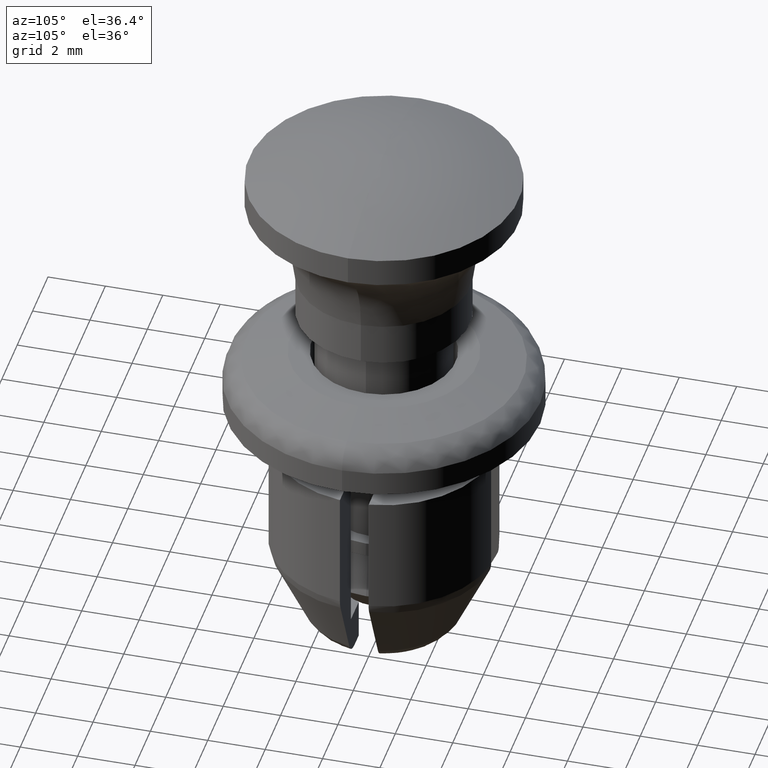
[diagram: clean part render]
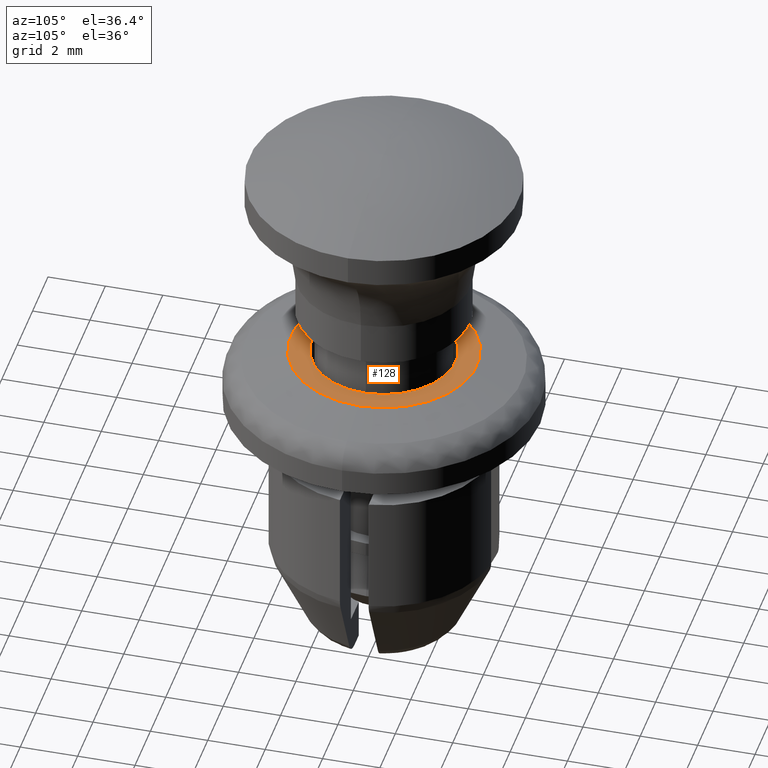
[diagram: same view with one face highlighted and labeled with its STEP entity id]
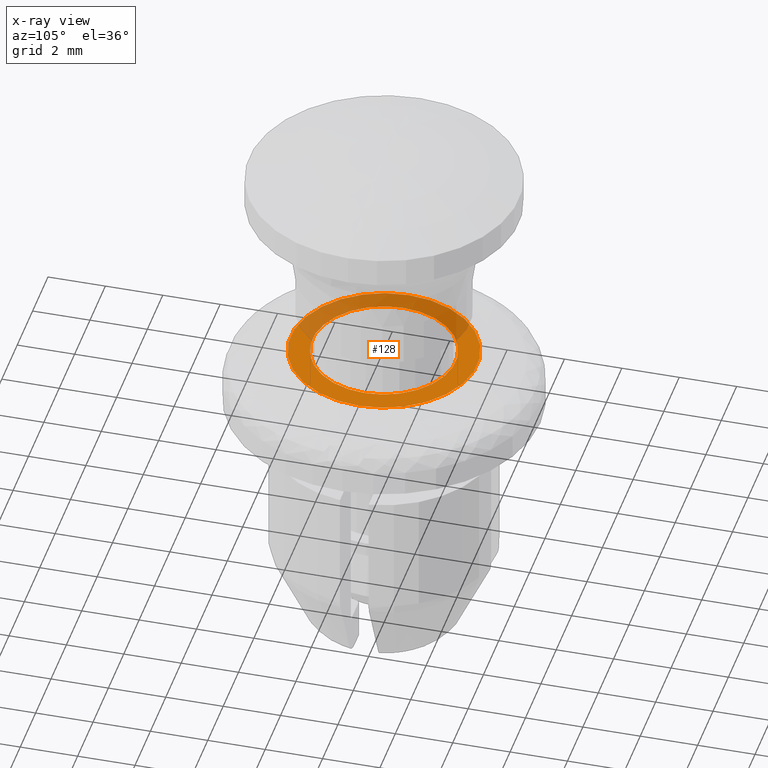
[diagram: x-ray of the same camera — body ghosted, the highlighted face saturated]
A machine part, auxiliary view. The second image highlights one B-rep face of the part: STEP entity #128.
The next image is the same camera in x-ray: the body ghosted, the highlighted face saturated — about 39% of this face is hidden behind the body in this view.
In plain terms, the highlighted planar face has unit normal (0, 0, 1).
Its self-contained STEP definition (entity closure, byte-faithful):
#128=ADVANCED_FACE('',(#353,#354),#352,.T.);
#352=PLANE('',#1096);
#353=FACE_OUTER_BOUND('',#1097,.T.);
#354=FACE_BOUND('',#1098,.T.);
#1093=CARTESIAN_POINT('',(-4.22500000000E+00,-6.75499814952E+00,0.00000000000E+00));
#1094=DIRECTION('',(0.00000000000E+00,0.00000000000E+00,1.00000000000E+00));
#1095=DIRECTION('',(1.00000000000E+00,0.00000000000E+00,0.00000000000E+00));
#1096=AXIS2_PLACEMENT_3D('',#1093,#1094,#1095);
#1097=EDGE_LOOP('',(#1700,#1701));
#1098=EDGE_LOOP('',(#1702,#1703));
#1700=ORIENTED_EDGE('',*,*,#2077,.F.);
#1701=ORIENTED_EDGE('',*,*,#2078,.F.);
#1702=ORIENTED_EDGE('',*,*,#2079,.F.);
#1703=ORIENTED_EDGE('',*,*,#2080,.F.);
#2077=EDGE_CURVE('',#2733,#2734,#2735,.T.);
#2078=EDGE_CURVE('',#2734,#2733,#2741,.T.);
#2079=EDGE_CURVE('',#2747,#2748,#2749,.T.);
#2080=EDGE_CURVE('',#2748,#2747,#2755,.T.);
#2733=VERTEX_POINT('',#3857);
#2734=VERTEX_POINT('',#3858);
#2735=CIRCLE('',#3862,3.25000000000E+00);
#2741=CIRCLE('',#3866,3.25000000000E+00);
#2747=VERTEX_POINT('',#3867);
#2748=VERTEX_POINT('',#3868);
#2749=CIRCLE('',#3872,2.50000000000E+00);
#2755=CIRCLE('',#3876,2.50000000000E+00);
#3857=CARTESIAN_POINT('',(3.25000000000E+00,1.48029736617E-16,0.00000000000E+00));
#3858=CARTESIAN_POINT('',(-3.25000000000E+00,0.00000000000E+00,0.00000000000E+00));
#3859=CARTESIAN_POINT('',(0.00000000000E+00,0.00000000000E+00,0.00000000000E+00));
#3860=DIRECTION('',(-0.00000000000E+00,0.00000000000E+00,-1.00000000000E+00));
#3861=DIRECTION('',(-1.00000000000E+00,-1.22460635382E-16,0.00000000000E+00));
#3862=AXIS2_PLACEMENT_3D('',#3859,#3860,#3861);
#3863=CARTESIAN_POINT('',(0.00000000000E+00,0.00000000000E+00,0.00000000000E+00));
#3864=DIRECTION('',(-0.00000000000E+00,0.00000000000E+00,-1.00000000000E+00));
#3865=DIRECTION('',(-1.00000000000E+00,-1.22460635382E-16,0.00000000000E+00));
#3866=AXIS2_PLACEMENT_3D('',#3863,#3864,#3865);
#3867=CARTESIAN_POINT('',(2.50000000000E+00,2.96059473233E-16,0.00000000000E+00));
#3868=CARTESIAN_POINT('',(-2.50000000000E+00,0.00000000000E+00,0.00000000000E+00));
#3869=CARTESIAN_POINT('',(0.00000000000E+00,0.00000000000E+00,0.00000000000E+00));
#3870=DIRECTION('',(0.00000000000E+00,0.00000000000E+00,1.00000000000E+00));
#3871=DIRECTION('',(-1.00000000000E+00,-1.22460635382E-16,0.00000000000E+00));
#3872=AXIS2_PLACEMENT_3D('',#3869,#3870,#3871);
#3873=CARTESIAN_POINT('',(0.00000000000E+00,0.00000000000E+00,0.00000000000E+00));
#3874=DIRECTION('',(0.00000000000E+00,0.00000000000E+00,1.00000000000E+00));
#3875=DIRECTION('',(-1.00000000000E+00,-1.22460635382E-16,0.00000000000E+00));
#3876=AXIS2_PLACEMENT_3D('',#3873,#3874,#3875);